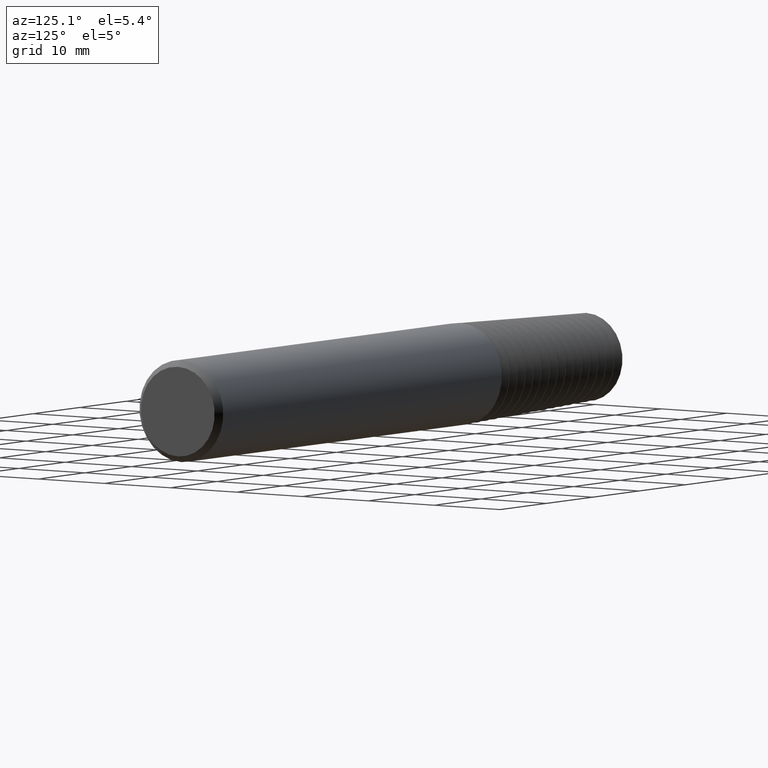
[diagram: clean part render]
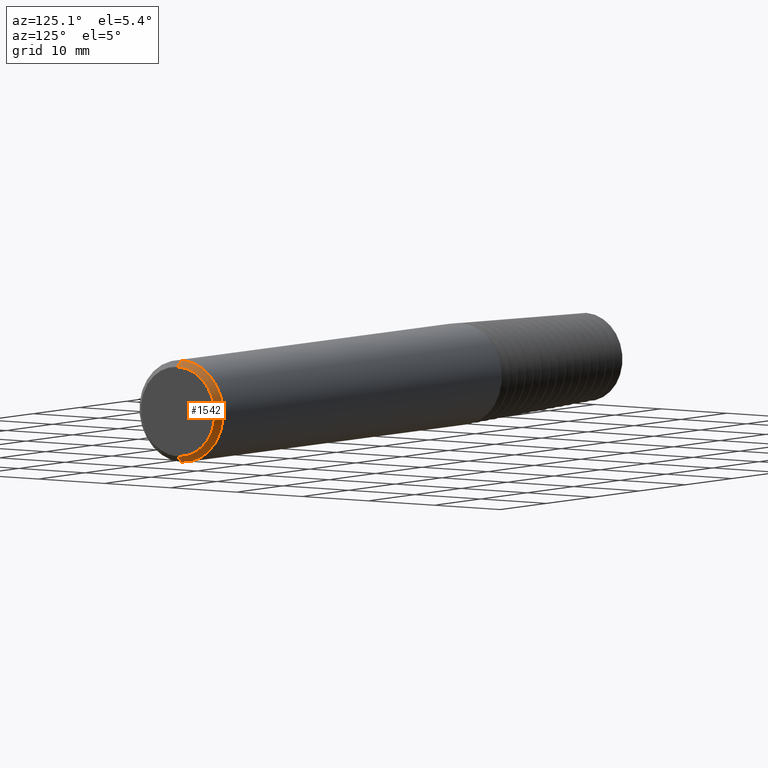
[diagram: same view with one face highlighted and labeled with its STEP entity id]
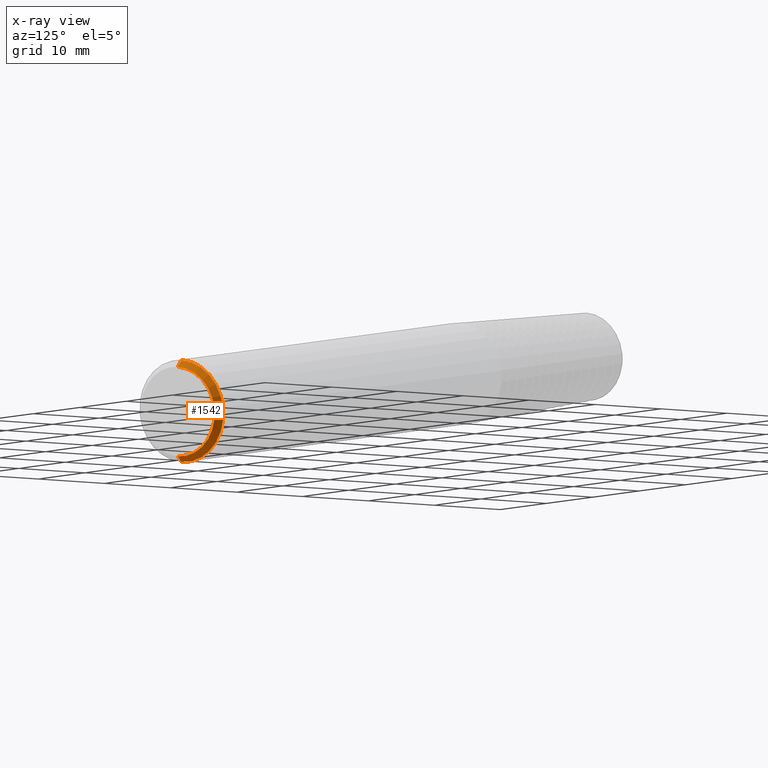
[diagram: x-ray of the same camera — body ghosted, the highlighted face saturated]
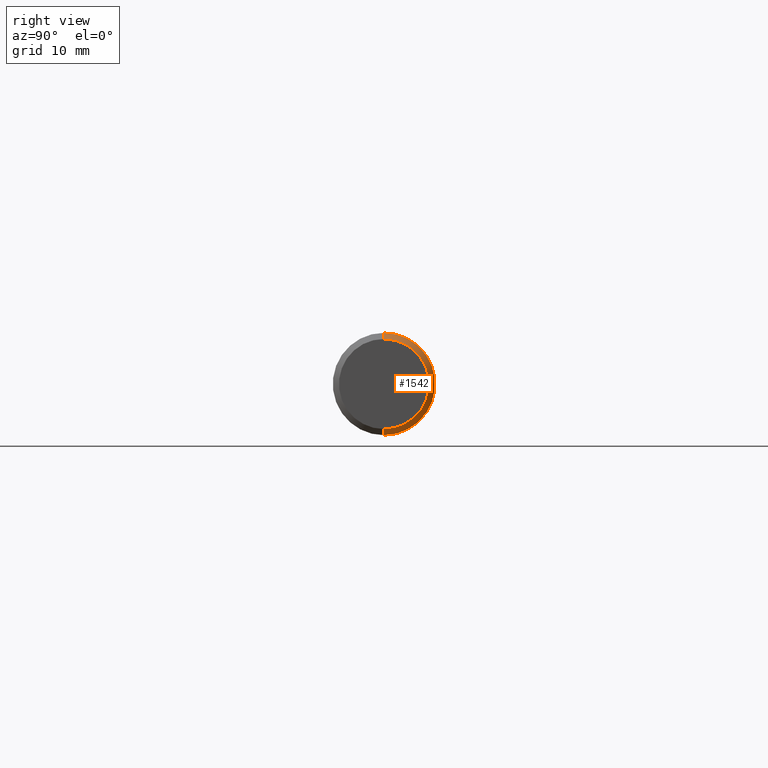
[diagram: same view with one face highlighted and labeled with its STEP entity id]
A machine part, auxiliary view. The second image highlights one B-rep face of the part: STEP entity #1542.
The next image is the same camera in x-ray: the body ghosted, the highlighted face saturated — about 0% of this face is hidden behind the body in this view.
A second angle (right view) of the same face is appended — the face is thin or edge-on in the first view.
In plain terms, the highlighted conical surface has half-angle 45 deg.
Its self-contained STEP definition (entity closure, byte-faithful):
#46 = VERTEX_POINT ( 'NONE', #2469 ) ;
#118 = ORIENTED_EDGE ( 'NONE', *, *, #675, .F. ) ;
#380 = EDGE_CURVE ( 'NONE', #816, #3016, #1282, .T. ) ;
#446 = VECTOR ( 'NONE', #1033, 39.37007874015748143 ) ;
#449 = DIRECTION ( 'NONE',  ( 1.000000000000000000, 0.0000000000000000000, 0.0000000000000000000 ) ) ;
#576 = VECTOR ( 'NONE', #2708, 39.37007874015748143 ) ;
#601 = CIRCLE ( 'NONE', #2241, 0.2198500000000003785 ) ;
#604 = ORIENTED_EDGE ( 'NONE', *, *, #1551, .F. ) ;
#675 = EDGE_CURVE ( 'NONE', #46, #816, #601, .T. ) ;
#698 = CONICAL_SURFACE ( 'NONE', #1760, 0.2498499999999999888, 0.7853981633974517207 ) ;
#727 = CARTESIAN_POINT ( 'NONE',  ( 2.495000000000000551, 0.0000000000000000000, 0.0000000000000000000 ) ) ;
#746 = DIRECTION ( 'NONE',  ( 0.0000000000000000000, 0.0000000000000000000, 1.000000000000000000 ) ) ;
#764 = VERTEX_POINT ( 'NONE', #2190 ) ;
#790 = CARTESIAN_POINT ( 'NONE',  ( 2.495000000000000551, 0.0000000000000000000, 0.2498499999999999888 ) ) ;
#816 = VERTEX_POINT ( 'NONE', #1515 ) ;
#889 = EDGE_LOOP ( 'NONE', ( #118, #1118, #604, #2544 ) ) ;
#974 = CARTESIAN_POINT ( 'NONE',  ( 2.495000000000000551, 0.0000000000000000000, 0.0000000000000000000 ) ) ;
#991 = DIRECTION ( 'NONE',  ( -1.000000000000000000, -0.0000000000000000000, -0.0000000000000000000 ) ) ;
#1033 = DIRECTION ( 'NONE',  ( -0.7071067811865451302, 0.0000000000000000000, 0.7071067811865499042 ) ) ;
#1118 = ORIENTED_EDGE ( 'NONE', *, *, #2998, .T. ) ;
#1282 = LINE ( 'NONE', #790, #446 ) ;
#1335 = CARTESIAN_POINT ( 'NONE',  ( 2.495000000000000551, 0.0000000000000000000, 0.2498499999999999888 ) ) ;
#1515 = CARTESIAN_POINT ( 'NONE',  ( 2.524999999999999911, 0.0000000000000000000, 0.2198500000000003785 ) ) ;
#1542 = ADVANCED_FACE ( 'NONE', ( #2488 ), #698, .T. ) ;
#1551 = EDGE_CURVE ( 'NONE', #3016, #764, #2004, .T. ) ;
#1695 = CARTESIAN_POINT ( 'NONE',  ( 2.524999999999999911, 0.0000000000000000000, 0.0000000000000000000 ) ) ;
#1744 = DIRECTION ( 'NONE',  ( 0.0000000000000000000, 0.0000000000000000000, -1.000000000000000000 ) ) ;
#1760 = AXIS2_PLACEMENT_3D ( 'NONE', #727, #991, #746 ) ;
#1927 = AXIS2_PLACEMENT_3D ( 'NONE', #974, #3289, #1744 ) ;
#2004 = CIRCLE ( 'NONE', #1927, 0.2498499999999999888 ) ;
#2190 = CARTESIAN_POINT ( 'NONE',  ( 2.495000000000000551, 3.059780027669661931E-17, -0.2498499999999999888 ) ) ;
#2241 = AXIS2_PLACEMENT_3D ( 'NONE', #1695, #449, #3190 ) ;
#2456 = CARTESIAN_POINT ( 'NONE',  ( 2.495000000000000551, 3.059780027669661931E-17, -0.2498499999999999888 ) ) ;
#2469 = CARTESIAN_POINT ( 'NONE',  ( 2.524999999999999911, 2.876083007797561205E-17, -0.2198500000000003785 ) ) ;
#2488 = FACE_OUTER_BOUND ( 'NONE', #889, .T. ) ;
#2544 = ORIENTED_EDGE ( 'NONE', *, *, #380, .F. ) ;
#2708 = DIRECTION ( 'NONE',  ( -0.7071067811865451302, 8.659560562354961208E-17, -0.7071067811865499042 ) ) ;
#2998 = EDGE_CURVE ( 'NONE', #46, #764, #3083, .T. ) ;
#3016 = VERTEX_POINT ( 'NONE', #1335 ) ;
#3083 = LINE ( 'NONE', #2456, #576 ) ;
#3190 = DIRECTION ( 'NONE',  ( 0.0000000000000000000, 0.0000000000000000000, -1.000000000000000000 ) ) ;
#3289 = DIRECTION ( 'NONE',  ( -1.000000000000000000, -0.0000000000000000000, -0.0000000000000000000 ) ) ;